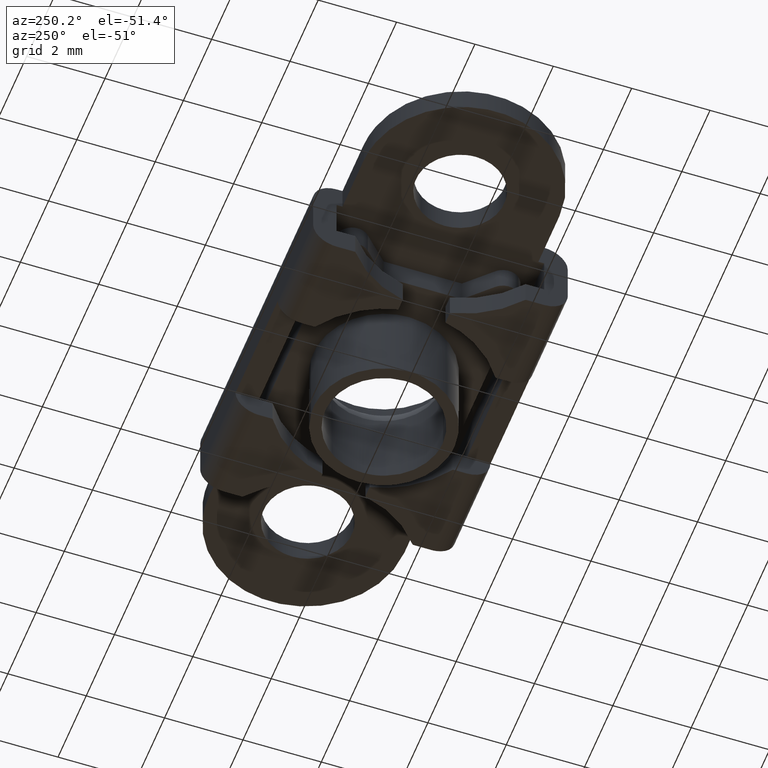
[diagram: clean part render]
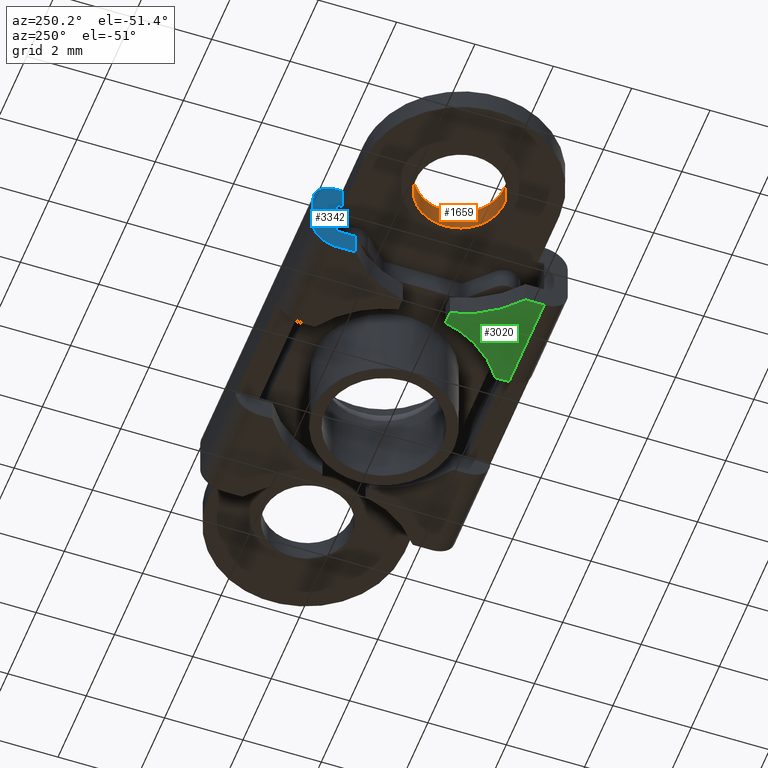
[diagram: same view with three faces highlighted in distinct colors, each labeled with its STEP entity id]
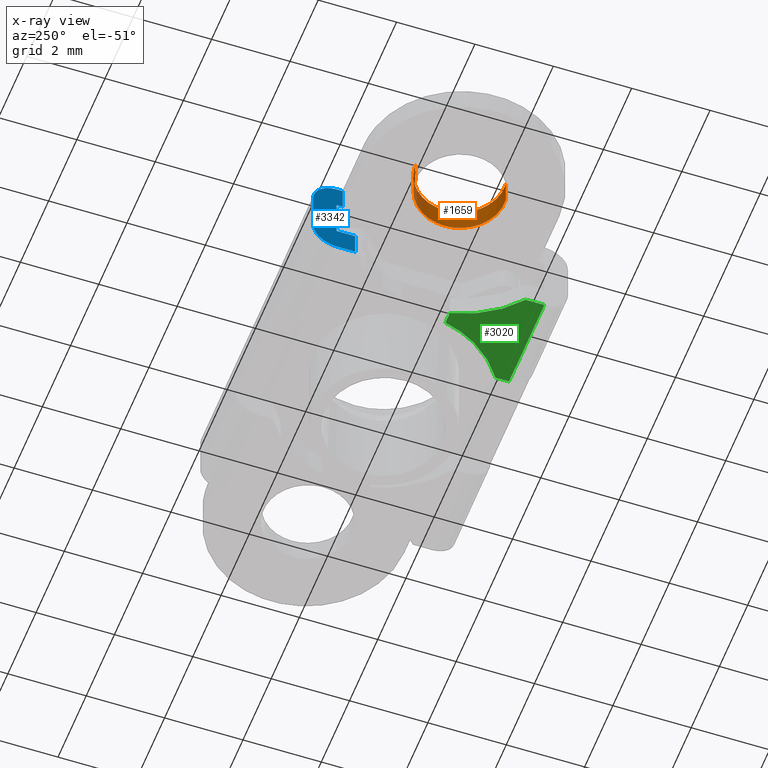
[diagram: x-ray of the same camera — body ghosted, the three highlighted faces saturated]
A machine part, auxiliary view with three faces highlighted in distinct colors.
The next image is the same camera in x-ray (body ghosted, the three faces saturated) — at least one of them is partly hidden behind the body in this view.
Their STEP definitions:

[orange] entity #1659 — the highlighted face is a freeform B-spline surface patch.
#1557=CARTESIAN_POINT('',(-5.532788513988854,-1.117135717159124,-0.615000000000046));
#1558=CARTESIAN_POINT('',(-5.500816569717725,-1.120936067379681,-0.615000000000046));
#1559=CARTESIAN_POINT('',(-5.468679606976714,-1.122901648224600,-0.615000000000046));
#1560=CARTESIAN_POINT('',(-4.345777958752115,-1.191581255201314,-0.615000000000046));
#1561=CARTESIAN_POINT('',(-4.277098351775400,-0.068679606976714,-0.615000000000046));
#1562=CARTESIAN_POINT('',(-4.208418744798687,1.054222041247886,-0.615000000000046));
#1563=CARTESIAN_POINT('',(-5.331320393023287,1.122901648224600,-0.615000000000046));
#1564=CARTESIAN_POINT('',(-5.532788513988854,-1.117135717159124,0.015375000000001));
#1565=CARTESIAN_POINT('',(-5.500816569717725,-1.120936067379681,0.015375000000001));
#1566=CARTESIAN_POINT('',(-5.468679606976714,-1.122901648224600,0.015375000000001));
#1567=CARTESIAN_POINT('',(-4.345777958752115,-1.191581255201314,0.015375000000001));
#1568=CARTESIAN_POINT('',(-4.277098351775400,-0.068679606976714,0.015375000000001));
#1569=CARTESIAN_POINT('',(-4.208418744798687,1.054222041247886,0.015375000000001));
#1570=CARTESIAN_POINT('',(-5.331320393023287,1.122901648224600,0.015375000000001));
#1578=(BOUNDED_SURFACE()B_SPLINE_SURFACE(2,1,((#1557,#1564),(#1558,#1565),(#1559,#1566),(#1560,#1567),(#1561,#1568),(#1562,#1569),(#1563,#1570)),.UNSPECIFIED.,.F.,.F.,.U.)B_SPLINE_SURFACE_WITH_KNOTS((3,2,2,3),(2,2),(3.078760800517997,3.141592653589793,4.712388980384690,6.283185307179586),(0.0,1.0),.UNSPECIFIED.)GEOMETRIC_REPRESENTATION_ITEM()RATIONAL_B_SPLINE_SURFACE(((0.977505800795127,0.977505800795127),(0.988284271247462,0.988284271247462),(1.0,1.0),(0.707106781186548,0.707106781186548),(1.0,1.0),(0.707106781186548,0.707106781186548),(1.0,1.0)))REPRESENTATION_ITEM('')SURFACE());
#1579=CARTESIAN_POINT('',(-5.532788513995008,-1.117135717158393,1.952107E-017));
#1580=VERTEX_POINT('',#1579);
#1581=CARTESIAN_POINT('',(-4.275000000000000,0.0,0.0));
#1582=VERTEX_POINT('',#1581);
#1583=CARTESIAN_POINT('',(-5.532788513995008,-1.117135717158393,1.952107E-017));
#1584=CARTESIAN_POINT('',(-5.466627134614619,-1.125000000000000,0.0));
#1585=CARTESIAN_POINT('',(-5.400000000000000,-1.125000000000000,0.0));
#1586=CARTESIAN_POINT('',(-4.275000000000000,-1.125000000000000,0.0));
#1587=CARTESIAN_POINT('',(-4.275000000000000,0.0,0.0));
#1595=(BOUNDED_CURVE()B_SPLINE_CURVE(2,(#1583,#1584,#1585,#1586,#1587),.UNSPECIFIED.,.F.,.U.)B_SPLINE_CURVE_WITH_KNOTS((3,2,3),(0.229562473513782,0.250000000000000,0.500000000000000),.UNSPECIFIED.)CURVE()GEOMETRIC_REPRESENTATION_ITEM()RATIONAL_B_SPLINE_CURVE((0.956026754184236,0.976055948331466,1.0,0.707106781186547,1.0))REPRESENTATION_ITEM(''));
#1596=EDGE_CURVE('',#1580,#1582,#1595,.T.);
#1597=ORIENTED_EDGE('',*,*,#1596,.T.);
#1598=CARTESIAN_POINT('',(-5.331320393005379,1.122901648223505,1.994932E-017));
#1599=VERTEX_POINT('',#1598);
#1600=CARTESIAN_POINT('',(-4.275000000000000,0.0,0.0));
#1601=CARTESIAN_POINT('',(-4.275000000000000,1.058294325235089,0.0));
#1602=CARTESIAN_POINT('',(-5.331320393005379,1.122901648223505,1.994932E-017));
#1610=(BOUNDED_CURVE()B_SPLINE_CURVE(2,(#1600,#1601,#1602),.UNSPECIFIED.,.F.,.U.)B_SPLINE_CURVE_WITH_KNOTS((3,3),(0.500000000000000,0.739332962236465),.UNSPECIFIED.)CURVE()GEOMETRIC_REPRESENTATION_ITEM()RATIONAL_B_SPLINE_CURVE((1.0,0.719603993289613,0.976072041661407))REPRESENTATION_ITEM(''));
#1611=EDGE_CURVE('',#1582,#1599,#1610,.T.);
#1612=ORIENTED_EDGE('',*,*,#1611,.T.);
#1613=CARTESIAN_POINT('',(-5.331320393005379,1.122901648223505,-0.600000000000045));
#1614=VERTEX_POINT('',#1613);
#1615=CARTESIAN_POINT('',(-5.331320393005379,1.122901648223505,-0.600000000000045));
#1616=CARTESIAN_POINT('',(-5.331320393005379,1.122901648223505,1.994932E-017));
#1617=QUASI_UNIFORM_CURVE('',1,(#1615,#1616),.UNSPECIFIED.,.F.,.U.);
#1618=EDGE_CURVE('',#1614,#1599,#1617,.T.);
#1619=ORIENTED_EDGE('',*,*,#1618,.F.);
#1620=CARTESIAN_POINT('',(-4.275000000000000,0.0,-0.600000000000045));
#1621=VERTEX_POINT('',#1620);
#1622=CARTESIAN_POINT('',(-4.275000000000000,0.0,-0.600000000000045));
#1623=CARTESIAN_POINT('',(-4.275000000000000,1.058294325235089,-0.600000000000045));
#1624=CARTESIAN_POINT('',(-5.331320393005379,1.122901648223505,-0.600000000000045));
#1632=(BOUNDED_CURVE()B_SPLINE_CURVE(2,(#1622,#1623,#1624),.UNSPECIFIED.,.F.,.U.)B_SPLINE_CURVE_WITH_KNOTS((3,3),(0.500000000000000,0.739332962236465),.UNSPECIFIED.)CURVE()GEOMETRIC_REPRESENTATION_ITEM()RATIONAL_B_SPLINE_CURVE((1.0,0.719603993289613,0.976072041661407))REPRESENTATION_ITEM(''));
#1633=EDGE_CURVE('',#1621,#1614,#1632,.T.);
#1634=ORIENTED_EDGE('',*,*,#1633,.F.);
#1635=CARTESIAN_POINT('',(-5.532788513995008,-1.117135717158393,-0.600000000000045));
#1636=VERTEX_POINT('',#1635);
#1637=CARTESIAN_POINT('',(-5.532788513995008,-1.117135717158393,-0.600000000000045));
#1638=CARTESIAN_POINT('',(-5.466627134614619,-1.125000000000000,-0.600000000000045));
#1639=CARTESIAN_POINT('',(-5.400000000000000,-1.125000000000000,-0.600000000000045));
#1640=CARTESIAN_POINT('',(-4.275000000000000,-1.125000000000000,-0.600000000000045));
#1641=CARTESIAN_POINT('',(-4.275000000000000,0.0,-0.600000000000045));
#1649=(BOUNDED_CURVE()B_SPLINE_CURVE(2,(#1637,#1638,#1639,#1640,#1641),.UNSPECIFIED.,.F.,.U.)B_SPLINE_CURVE_WITH_KNOTS((3,2,3),(0.229562473513782,0.250000000000000,0.500000000000000),.UNSPECIFIED.)CURVE()GEOMETRIC_REPRESENTATION_ITEM()RATIONAL_B_SPLINE_CURVE((0.956026754184236,0.976055948331466,1.0,0.707106781186547,1.0))REPRESENTATION_ITEM(''));
#1650=EDGE_CURVE('',#1636,#1621,#1649,.T.);
#1651=ORIENTED_EDGE('',*,*,#1650,.F.);
#1652=CARTESIAN_POINT('',(-5.532788513995008,-1.117135717158393,-0.600000000000045));
#1653=CARTESIAN_POINT('',(-5.532788513995008,-1.117135717158393,1.952107E-017));
#1654=QUASI_UNIFORM_CURVE('',1,(#1652,#1653),.UNSPECIFIED.,.F.,.U.);
#1655=EDGE_CURVE('',#1636,#1580,#1654,.T.);
#1656=ORIENTED_EDGE('',*,*,#1655,.T.);
#1657=EDGE_LOOP('',(#1597,#1612,#1619,#1634,#1651,#1656));
#1658=FACE_OUTER_BOUND('',#1657,.T.);
#1659=ADVANCED_FACE('',(#1658),#1578,.F.);

[blue] entity #3342 — the highlighted face is a freeform B-spline surface patch.
#1879=CARTESIAN_POINT('',(-4.0,3.250000000000000,-1.601000000000000));
#1880=VERTEX_POINT('',#1879);
#1881=CARTESIAN_POINT('',(-4.0,2.650000000000040,-2.201000000000000));
#1882=VERTEX_POINT('',#1881);
#1883=CARTESIAN_POINT('',(-4.0,3.250000000000000,-1.601000000000000));
#1884=CARTESIAN_POINT('',(-4.0,3.250000000000039,-2.201000000000000));
#1885=CARTESIAN_POINT('',(-4.0,2.650000000000040,-2.201000000000000));
#1893=(BOUNDED_CURVE()B_SPLINE_CURVE(2,(#1883,#1884,#1885),.UNSPECIFIED.,.F.,.U.)CURVE()GEOMETRIC_REPRESENTATION_ITEM()QUASI_UNIFORM_CURVE()RATIONAL_B_SPLINE_CURVE((1.0,0.707106781186547,1.0))REPRESENTATION_ITEM(''));
#1894=EDGE_CURVE('',#1880,#1882,#1893,.T.);
#2062=CARTESIAN_POINT('',(-4.0,2.650000000000000,1.622603E-016));
#2063=VERTEX_POINT('',#2062);
#2064=CARTESIAN_POINT('',(-4.0,3.250000000000000,-0.600000000000000));
#2065=VERTEX_POINT('',#2064);
#2066=CARTESIAN_POINT('',(-4.0,2.650000000000000,0.0));
#2067=CARTESIAN_POINT('',(-4.0,3.250000000000000,0.0));
#2068=CARTESIAN_POINT('',(-4.0,3.250000000000000,-0.600000000000000));
#2076=(BOUNDED_CURVE()B_SPLINE_CURVE(2,(#2066,#2067,#2068),.UNSPECIFIED.,.F.,.U.)CURVE()GEOMETRIC_REPRESENTATION_ITEM()QUASI_UNIFORM_CURVE()RATIONAL_B_SPLINE_CURVE((1.0,0.707106781186547,1.0))REPRESENTATION_ITEM(''));
#2077=EDGE_CURVE('',#2063,#2065,#2076,.T.);
#2384=CARTESIAN_POINT('',(-4.0,2.174316975512065,-1.600000000000045));
#2385=VERTEX_POINT('',#2384);
#2399=CARTESIAN_POINT('',(-4.0,2.174316975512065,-2.201000000000000));
#2400=VERTEX_POINT('',#2399);
#2401=CARTESIAN_POINT('',(-4.0,2.174316975512065,-2.201000000000000));
#2402=CARTESIAN_POINT('',(-4.0,2.174316975512065,-1.600000000000045));
#2403=QUASI_UNIFORM_CURVE('',1,(#2401,#2402),.UNSPECIFIED.,.F.,.U.);
#2404=EDGE_CURVE('',#2400,#2385,#2403,.T.);
#2435=CARTESIAN_POINT('',(-4.0,2.650000000000000,-1.600000000000045));
#2436=VERTEX_POINT('',#2435);
#2442=CARTESIAN_POINT('',(-4.0,2.650000000000000,-1.600000000000045));
#2443=CARTESIAN_POINT('',(-4.0,2.174316975512065,-1.600000000000045));
#2444=QUASI_UNIFORM_CURVE('',1,(#2442,#2443),.UNSPECIFIED.,.F.,.U.);
#2445=EDGE_CURVE('',#2436,#2385,#2444,.T.);
#2552=CARTESIAN_POINT('',(-4.0,2.174316975512065,-2.201000000000000));
#2553=CARTESIAN_POINT('',(-4.0,2.650000000000040,-2.201000000000000));
#2554=QUASI_UNIFORM_CURVE('',1,(#2552,#2553),.UNSPECIFIED.,.F.,.U.);
#2555=EDGE_CURVE('',#2400,#1882,#2554,.T.);
#3123=CARTESIAN_POINT('',(-4.0,2.499999999999901,1.530758E-016));
#3124=VERTEX_POINT('',#3123);
#3130=CARTESIAN_POINT('',(-4.0,2.499999999999901,-0.600000000000045));
#3131=VERTEX_POINT('',#3130);
#3132=CARTESIAN_POINT('',(-4.0,2.499999999999901,-0.600000000000045));
#3133=CARTESIAN_POINT('',(-4.0,2.499999999999901,1.530758E-016));
#3134=QUASI_UNIFORM_CURVE('',1,(#3132,#3133),.UNSPECIFIED.,.F.,.U.);
#3135=EDGE_CURVE('',#3131,#3124,#3134,.T.);
#3307=CARTESIAN_POINT('',(-4.0,2.120586509546349,0.109939945734035));
#3308=CARTESIAN_POINT('',(-4.0,3.303730398644227,0.109939945734035));
#3309=CARTESIAN_POINT('',(-4.0,2.120586509546349,-2.310940004769455));
#3310=CARTESIAN_POINT('',(-4.0,3.303730398644227,-2.310940004769455));
#3311=B_SPLINE_SURFACE_WITH_KNOTS('',1,1,((#3307,#3309),(#3308,#3310)),.UNSPECIFIED.,.F.,.F.,.U.,(2,2),(2,2),(0.041708256721124,0.958291691124812),(0.0,2.420879950503490),.UNSPECIFIED.);
#3312=CARTESIAN_POINT('',(-4.0,3.250000000000000,-0.600000000000000));
#3313=CARTESIAN_POINT('',(-4.0,3.250000000000000,-1.601000000000000));
#3314=QUASI_UNIFORM_CURVE('',1,(#3312,#3313),.UNSPECIFIED.,.F.,.U.);
#3315=EDGE_CURVE('',#2065,#1880,#3314,.T.);
#3316=ORIENTED_EDGE('',*,*,#3315,.T.);
#3317=ORIENTED_EDGE('',*,*,#1894,.T.);
#3318=ORIENTED_EDGE('',*,*,#2555,.F.);
#3319=ORIENTED_EDGE('',*,*,#2404,.T.);
#3320=ORIENTED_EDGE('',*,*,#2445,.F.);
#3321=CARTESIAN_POINT('',(-4.0,2.650000000000000,-0.600000000000000));
#3322=VERTEX_POINT('',#3321);
#3323=CARTESIAN_POINT('',(-4.0,2.650000000000000,-0.600000000000000));
#3324=CARTESIAN_POINT('',(-4.0,2.650000000000000,-1.600000000000045));
#3325=QUASI_UNIFORM_CURVE('',1,(#3323,#3324),.UNSPECIFIED.,.F.,.U.);
#3326=EDGE_CURVE('',#3322,#2436,#3325,.T.);
#3327=ORIENTED_EDGE('',*,*,#3326,.F.);
#3328=CARTESIAN_POINT('',(-4.0,2.650000000000000,-0.600000000000000));
#3329=CARTESIAN_POINT('',(-4.0,2.499999999999901,-0.600000000000045));
#3330=QUASI_UNIFORM_CURVE('',1,(#3328,#3329),.UNSPECIFIED.,.F.,.U.);
#3331=EDGE_CURVE('',#3322,#3131,#3330,.T.);
#3332=ORIENTED_EDGE('',*,*,#3331,.T.);
#3333=ORIENTED_EDGE('',*,*,#3135,.T.);
#3334=CARTESIAN_POINT('',(-4.0,2.499999999999901,1.530758E-016));
#3335=CARTESIAN_POINT('',(-4.0,2.650000000000000,1.622603E-016));
#3336=QUASI_UNIFORM_CURVE('',1,(#3334,#3335),.UNSPECIFIED.,.F.,.U.);
#3337=EDGE_CURVE('',#3124,#2063,#3336,.T.);
#3338=ORIENTED_EDGE('',*,*,#3337,.T.);
#3339=ORIENTED_EDGE('',*,*,#2077,.T.);
#3340=EDGE_LOOP('',(#3316,#3317,#3318,#3319,#3320,#3327,#3332,#3333,#3338,#3339));
#3341=FACE_OUTER_BOUND('',#3340,.T.);
#3342=ADVANCED_FACE('',(#3341),#3311,.T.);

[green] entity #3020 — the highlighted face is a freeform B-spline surface patch.
#1940=CARTESIAN_POINT('',(-4.0,-2.650000000000040,-2.201000000000000));
#1941=VERTEX_POINT('',#1940);
#1957=CARTESIAN_POINT('',(-1.500000000000000,-2.650000000000040,-2.201000000000000));
#1958=VERTEX_POINT('',#1957);
#1959=CARTESIAN_POINT('',(-1.500000000000000,-2.650000000000040,-2.201000000000000));
#1960=CARTESIAN_POINT('',(-4.0,-2.650000000000040,-2.201000000000000));
#1961=QUASI_UNIFORM_CURVE('',1,(#1959,#1960),.UNSPECIFIED.,.F.,.U.);
#1962=EDGE_CURVE('',#1958,#1941,#1961,.T.);
#2768=CARTESIAN_POINT('',(-1.500000000000000,-2.304886114323230,-2.201000000000000));
#2769=VERTEX_POINT('',#2768);
#2775=CARTESIAN_POINT('',(-2.683747380063930,-0.599999999999987,-2.201000000000000));
#2776=VERTEX_POINT('',#2775);
#2777=CARTESIAN_POINT('',(-1.499999999999995,-2.304886114323225,-2.201000000000000));
#2778=CARTESIAN_POINT('',(-2.439246081188115,-1.693632867133676,-2.200999999999999));
#2779=CARTESIAN_POINT('',(-2.683747380063931,-0.599999999999987,-2.201000000000000));
#2787=(BOUNDED_CURVE()B_SPLINE_CURVE(2,(#2777,#2778,#2779),.UNSPECIFIED.,.F.,.U.)CURVE()GEOMETRIC_REPRESENTATION_ITEM()QUASI_UNIFORM_CURVE()RATIONAL_B_SPLINE_CURVE((1.0,0.926061695415067,1.0))REPRESENTATION_ITEM(''));
#2788=EDGE_CURVE('',#2769,#2776,#2787,.T.);
#2811=CARTESIAN_POINT('',(-2.999952619936080,-0.599999999999987,-2.201000000000000));
#2812=VERTEX_POINT('',#2811);
#2813=CARTESIAN_POINT('',(-2.999952619936080,-0.599999999999987,-2.201000000000000));
#2814=CARTESIAN_POINT('',(-2.683747380063930,-0.599999999999987,-2.201000000000000));
#2815=QUASI_UNIFORM_CURVE('',1,(#2813,#2814),.UNSPECIFIED.,.F.,.U.);
#2816=EDGE_CURVE('',#2812,#2776,#2815,.T.);
#2856=CARTESIAN_POINT('',(-4.0,-2.174316975512065,-2.201000000000000));
#2857=VERTEX_POINT('',#2856);
#2858=CARTESIAN_POINT('',(-2.999952619936080,-0.599999999999987,-2.201000000000000));
#2859=CARTESIAN_POINT('',(-3.216232314482361,-1.567400105999405,-2.201000000000000));
#2860=CARTESIAN_POINT('',(-3.999999999999992,-2.174316975512074,-2.201000000000000));
#2868=(BOUNDED_CURVE()B_SPLINE_CURVE(2,(#2858,#2859,#2860),.UNSPECIFIED.,.F.,.U.)CURVE()GEOMETRIC_REPRESENTATION_ITEM()QUASI_UNIFORM_CURVE()RATIONAL_B_SPLINE_CURVE((1.0,0.940747571525065,1.0))REPRESENTATION_ITEM(''));
#2869=EDGE_CURVE('',#2812,#2857,#2868,.T.);
#2992=CARTESIAN_POINT('',(-1.500000000000000,-2.304886114323230,-2.201000000000000));
#2993=CARTESIAN_POINT('',(-1.500000000000000,-2.650000000000040,-2.201000000000000));
#2994=QUASI_UNIFORM_CURVE('',1,(#2992,#2993),.UNSPECIFIED.,.F.,.U.);
#2995=EDGE_CURVE('',#2769,#1958,#2994,.T.);
#3003=CARTESIAN_POINT('',(-1.375125004845485,-2.752397611490345,-2.201000000000000));
#3004=CARTESIAN_POINT('',(-4.124875062209740,-2.752397611490345,-2.201000000000000));
#3005=CARTESIAN_POINT('',(-1.375125004845485,-0.497602443494967,-2.201000000000000));
#3006=CARTESIAN_POINT('',(-4.124875062209740,-0.497602443494967,-2.201000000000000));
#3007=B_SPLINE_SURFACE_WITH_KNOTS('',1,1,((#3003,#3005),(#3004,#3006)),.UNSPECIFIED.,.F.,.F.,.U.,(2,2),(2,2),(0.0,2.749750057364255),(0.0,2.254795167995377),.UNSPECIFIED.);
#3008=ORIENTED_EDGE('',*,*,#2995,.T.);
#3009=ORIENTED_EDGE('',*,*,#1962,.T.);
#3010=CARTESIAN_POINT('',(-4.0,-2.174316975512065,-2.201000000000000));
#3011=CARTESIAN_POINT('',(-4.0,-2.650000000000040,-2.201000000000000));
#3012=QUASI_UNIFORM_CURVE('',1,(#3010,#3011),.UNSPECIFIED.,.F.,.U.);
#3013=EDGE_CURVE('',#2857,#1941,#3012,.T.);
#3014=ORIENTED_EDGE('',*,*,#3013,.F.);
#3015=ORIENTED_EDGE('',*,*,#2869,.F.);
#3016=ORIENTED_EDGE('',*,*,#2816,.T.);
#3017=ORIENTED_EDGE('',*,*,#2788,.F.);
#3018=EDGE_LOOP('',(#3008,#3009,#3014,#3015,#3016,#3017));
#3019=FACE_OUTER_BOUND('',#3018,.T.);
#3020=ADVANCED_FACE('',(#3019),#3007,.T.);